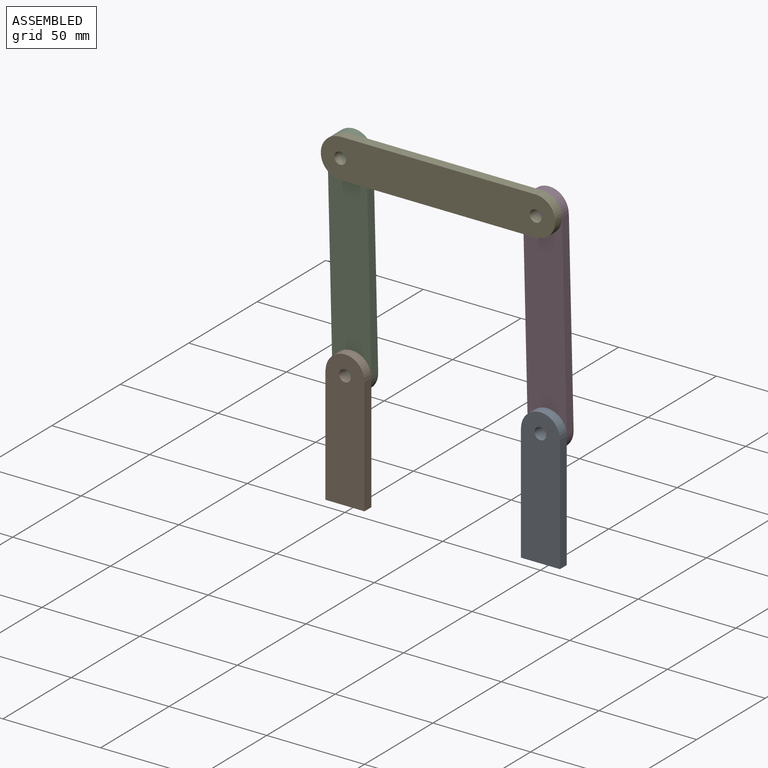
[diagram: assembled view]
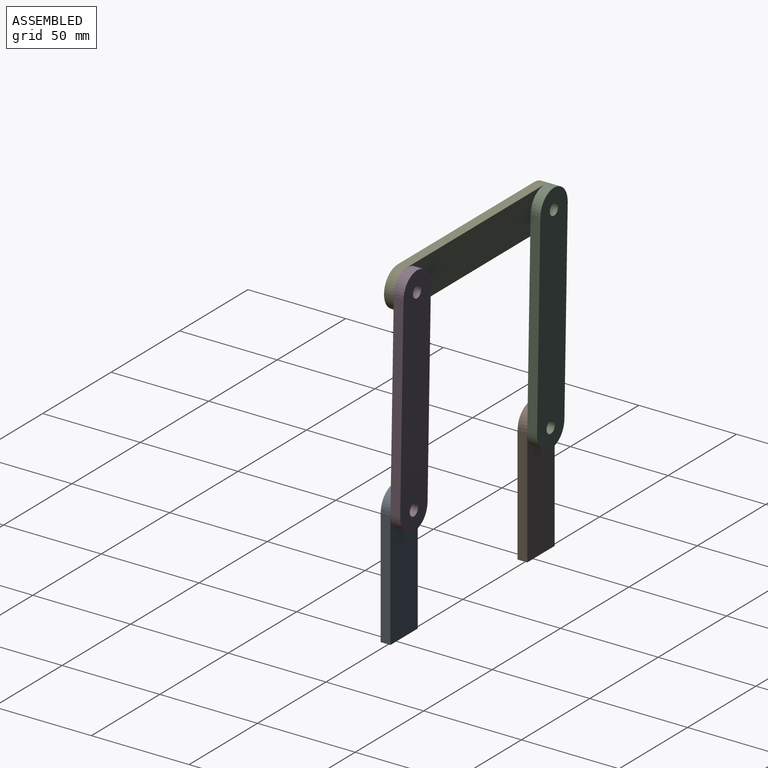
[diagram: assembled view, second angle]
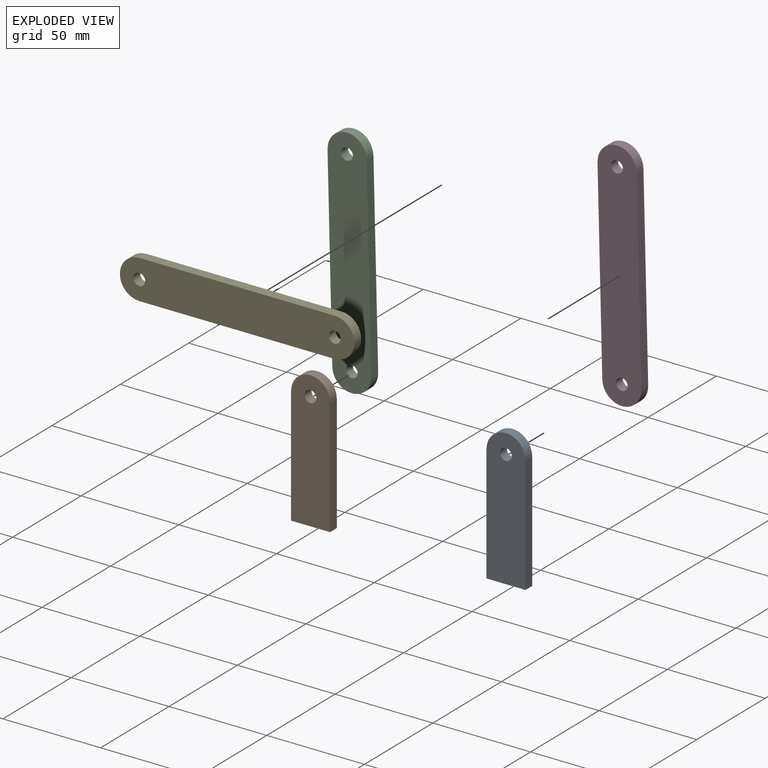
[diagram: exploded view]
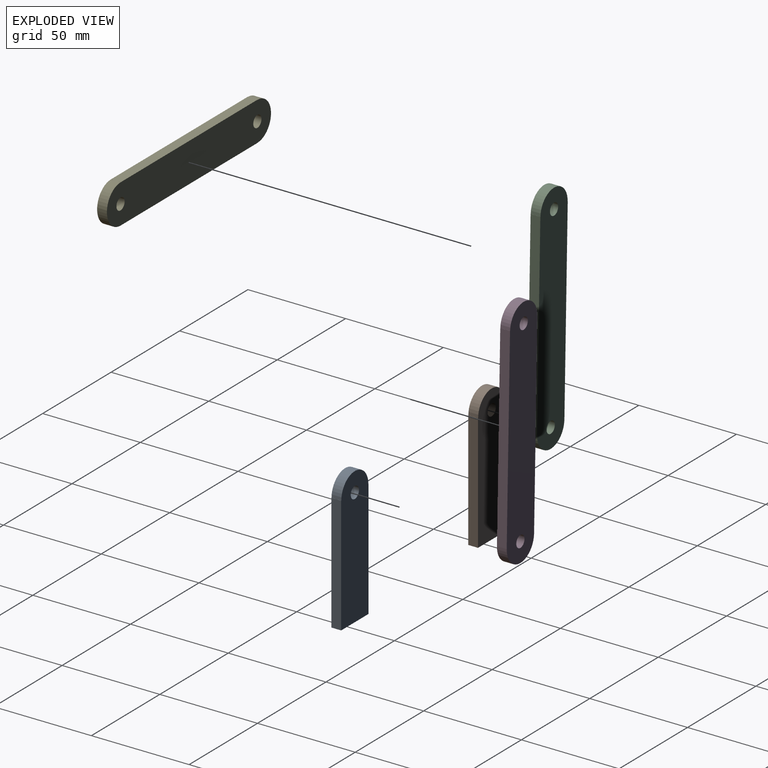
[diagram: exploded view, second angle]
ASSEMBLY  parts=5 mates=4
PART A: 9 faces, bbox 20x5x69.9 mm
  f0: plane 20x5mm, normal (0,0,-1), area 100mm2, adj f1,f6,f7,f8
  f1: plane 60x5mm, normal (1,0,0), area 300mm2, adj f0,f2,f7,f8
  f2: plane 5x0.09mm, normal (0,0,1), area 0.5mm2, adj f1,f3,f7,f8
  f3: cylinder r=9.91mm len=19.82mm, axis (0,1,0), area 155.6mm2, adj f2,f4,f7,f8
  f4: plane 5x0.09mm, normal (0,0,1), area 0.5mm2, adj f3,f6,f7,f8
  f5: cylinder r=3mm len=6mm, axis (0,1,0), area 94.2mm2, adj f7,f8
  f6: plane 60x5mm, normal (-1,0,0), area 300mm2, adj f0,f4,f7,f8
  f7: plane 69.91x20mm, normal (0,-1,0), area 1326mm2, adj f0,f1,f2,f3,f4,f5,f6
  f8: plane 69.91x20mm, normal (0,1,0), area 1326mm2, adj f0,f1,f2,f3,f4,f5,f6
PART B: same geometry as A
PART C: 12 faces, bbox 20x5x119.9 mm
  f0: plane 100x5mm, normal (1,0,0), area 500mm2, adj f1,f9,f10,f11
  f1: plane 5x0.05mm, normal (0,0,1), area 0.3mm2, adj f0,f2,f10,f11
  f2: cylinder r=9.95mm len=19.9mm, axis (0,1,0), area 156.3mm2, adj f1,f3,f10,f11
  f3: plane 5x0.05mm, normal (0,0,1), area 0.3mm2, adj f2,f4,f10,f11
  f4: plane 100x5mm, normal (-1,0,0), area 500mm2, adj f3,f5,f10,f11
  f5: plane 5x0.02mm, normal (0,0,-1), area 0.1mm2, adj f4,f6,f10,f11
  f6: cylinder r=9.98mm len=19.97mm, axis (0,1,0), area 156.8mm2, adj f5,f9,f10,f11
  f7: cylinder r=3mm len=6mm, axis (0,1,0), area 94.2mm2, adj f10,f11
  f8: cylinder r=3mm len=6mm, axis (0,1,0), area 94.2mm2, adj f10,f11
  f9: plane 5x0.02mm, normal (0,0,-1), area 0.1mm2, adj f0,f6,f10,f11
  f10: plane 119.93x20mm, normal (0,-1,0), area 2255.4mm2, adj f0,f1,f2,f3,f4,f5,f6,f7
  f11: plane 119.93x20mm, normal (0,1,0), area 2255.4mm2, adj f0,f1,f2,f3,f4,f5,f6,f7
PART D: same geometry as C
PART E: same geometry as C
PLACE A t=(100,5,30)mm
PLACE B t=(0,5,30)mm
PLACE C rot(axis=(0,-1,0),1.4deg) t=(-3.5,10,203.78)mm
PLACE D rot(axis=(0,-1,0),1.4deg) t=(96.5,10,203.78)mm
PLACE E rot(axis=(0,-1,0),90deg) t=(-46.25,5,159.97)mm
MATE revolute C.f6 <-> B.f5  axis (0,-1,0) through (0,5,60)mm
MATE revolute D.f6 <-> A.f5  axis (0,-1,0) through (100,5,60)mm
MATE revolute E.f6 <-> D.f2  axis (0,1,0) through (97.57,5,159.97)mm
MATE revolute E.f2 <-> C.f2  axis (0,1,0) through (-2.43,5,159.97)mm
